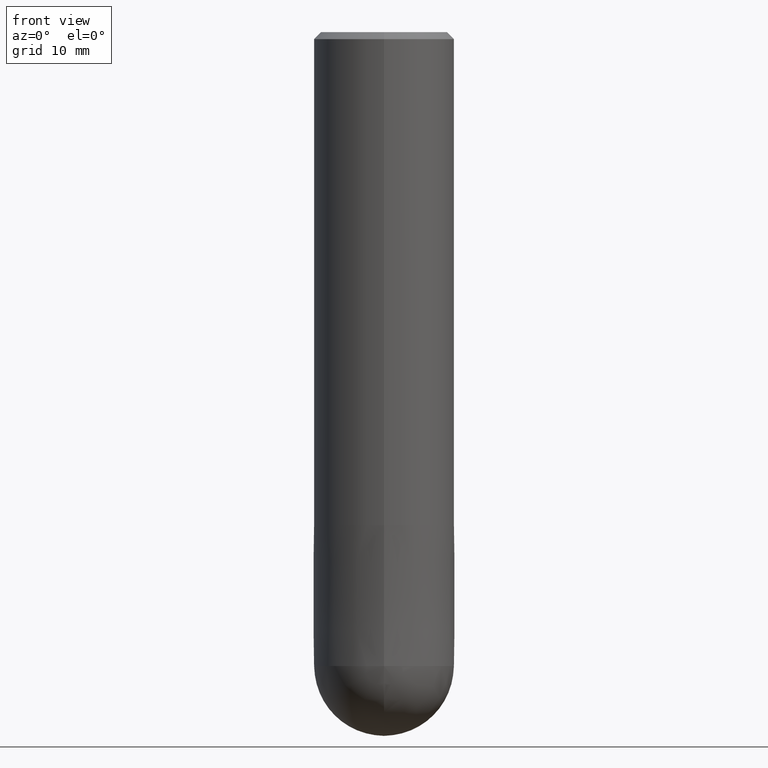
[diagram: clean part render]
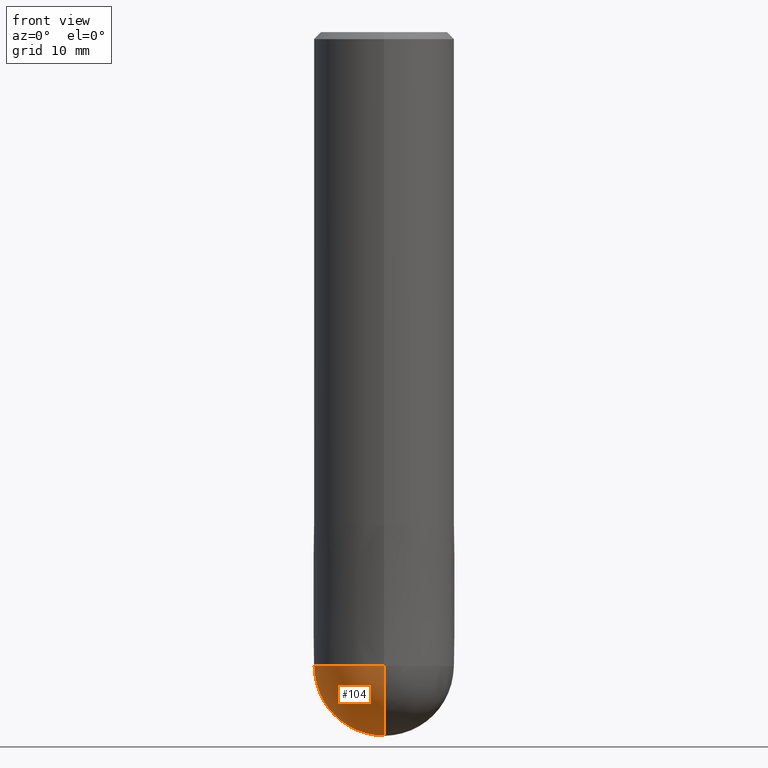
[diagram: same view with one face highlighted and labeled with its STEP entity id]
A machine part, front view. The second image highlights one B-rep face of the part: STEP entity #104.
In plain terms, the highlighted spherical surface has radius 6 mm.
Its self-contained STEP definition (entity closure, byte-faithful):
#96=EDGE_CURVE('',#116,#110,#194,.T.);
#104=ADVANCED_FACE('',(#203),#204,.T.);
#106=EDGE_CURVE('',#116,#110,#206,.T.);
#110=VERTEX_POINT('',#210);
#116=VERTEX_POINT('',#216);
#194=CIRCLE('',#293,6.00000000000001);
#203=FACE_OUTER_BOUND('',#304,.T.);
#204=SPHERICAL_SURFACE('',#305,6.00000000000001);
#206=CIRCLE('',#308,6.0);
#210=CARTESIAN_POINT('',(0.0,6.0,-54.0));
#216=CARTESIAN_POINT('',(7.34763812293426E-016,-6.0,-54.0));
#293=AXIS2_PLACEMENT_3D('',#403,#404,#405);
#304=EDGE_LOOP('',(#421,#422));
#305=AXIS2_PLACEMENT_3D('',#423,#424,#425);
#308=AXIS2_PLACEMENT_3D('',#426,#427,#428);
#403=CARTESIAN_POINT('',(0.0,0.0,-54.0));
#404=DIRECTION('',(1.0,0.0,1.22460635382238E-016));
#405=DIRECTION('',(-1.22460635382238E-016,0.0,1.0));
#421=ORIENTED_EDGE('',*,*,#96,.F.);
#422=ORIENTED_EDGE('',*,*,#106,.T.);
#423=CARTESIAN_POINT('',(0.0,0.0,-54.0));
#424=DIRECTION('',(0.0,1.0,0.0));
#425=DIRECTION('',(0.0,0.0,-1.0));
#426=CARTESIAN_POINT('',(0.0,0.0,-54.0));
#427=DIRECTION('',(0.0,0.0,-1.0));
#428=DIRECTION('',(0.0,1.0,0.0));